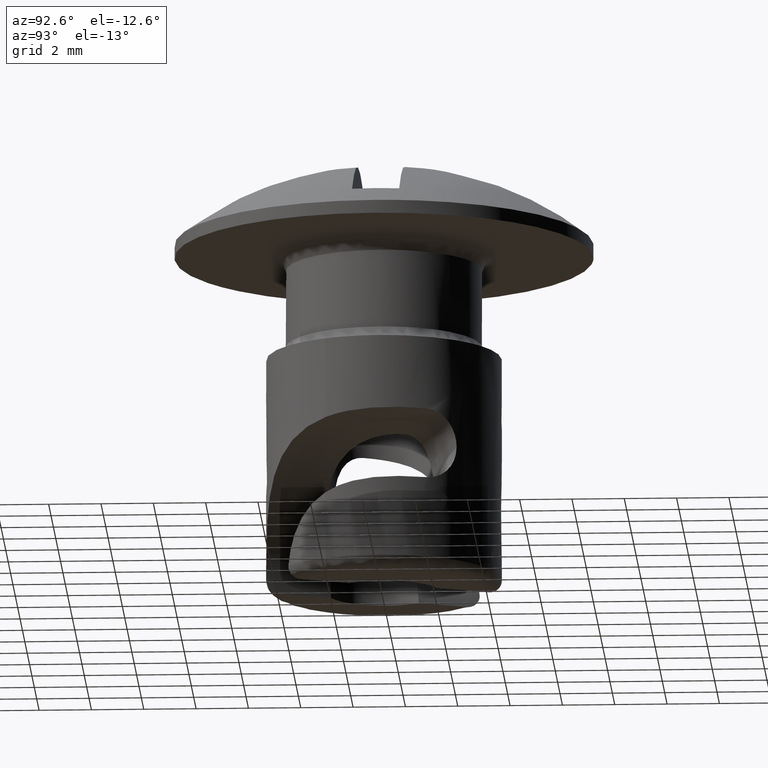
[diagram: clean part render]
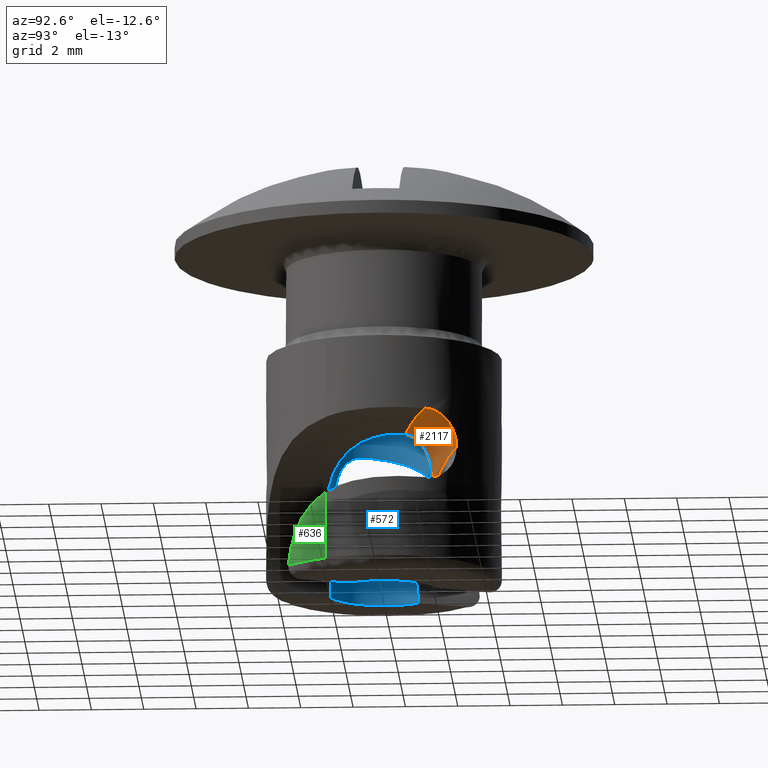
[diagram: same view with three faces highlighted in distinct colors, each labeled with its STEP entity id]
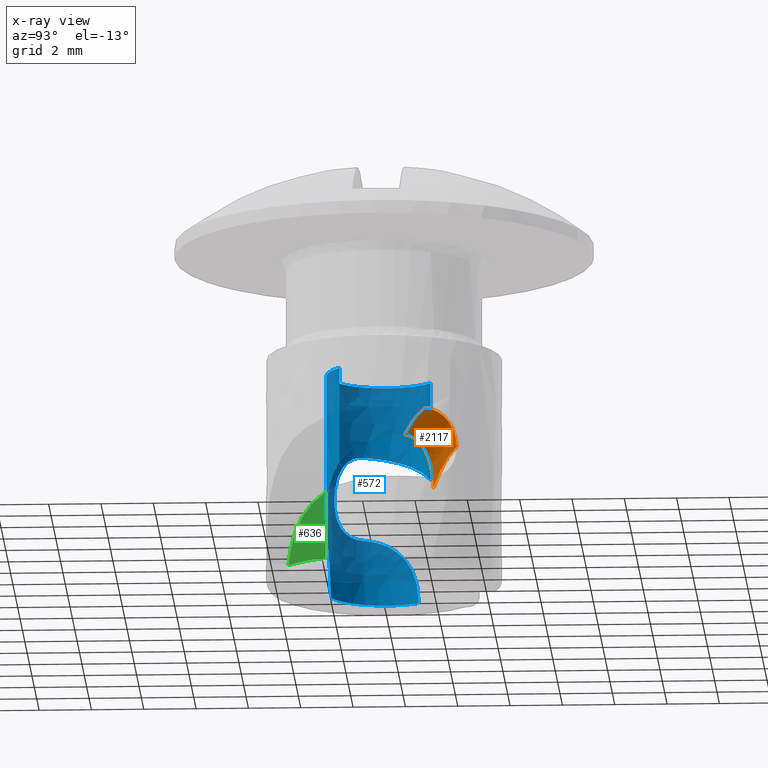
[diagram: x-ray of the same camera — body ghosted, the three highlighted faces saturated]
A machine part, auxiliary view with three faces highlighted in distinct colors.
The next image is the same camera in x-ray (body ghosted, the three faces saturated) — at least one of them is partly hidden behind the body in this view.
Their STEP definitions:

[orange] entity #2117 — the highlighted face is a freeform B-spline surface patch.
#175=CARTESIAN_POINT('',(1.032118753242044,1.942866665318565,-9.234441002166861));
#176=VERTEX_POINT('',#175);
#207=CARTESIAN_POINT('',(2.012875800871520,0.887880065248595,-7.353733664145491));
#208=VERTEX_POINT('',#207);
#209=CARTESIAN_POINT('',(1.032118753242044,1.942866665318565,-9.234441002166861));
#210=CARTESIAN_POINT('',(1.032118753242034,1.942866665318565,-9.124854469212359));
#211=CARTESIAN_POINT('',(1.041282203844358,1.938060405158311,-9.017136617474094));
#212=CARTESIAN_POINT('',(1.073939464759542,1.920156448864870,-8.804692381530945));
#213=CARTESIAN_POINT('',(1.097469224113807,1.907029235791350,-8.699974278932073));
#214=CARTESIAN_POINT('',(1.142077236475881,1.880414684832481,-8.544978165673790));
#215=CARTESIAN_POINT('',(1.158486466521929,1.870386004651250,-8.493791863974659));
#216=CARTESIAN_POINT('',(1.193726584059462,1.848094029539476,-8.393576387638401));
#217=CARTESIAN_POINT('',(1.212608139912845,1.835801363041411,-8.344366554851861));
#218=CARTESIAN_POINT('',(1.272716932055015,1.795141273819650,-8.199396856227910));
#219=CARTESIAN_POINT('',(1.317377743613420,1.763063380872777,-8.106261604249301));
#220=CARTESIAN_POINT('',(1.390581283146176,1.705066815714060,-7.972278008562050));
#221=CARTESIAN_POINT('',(1.416083724428877,1.684012830470474,-7.928507851817817));
#222=CARTESIAN_POINT('',(1.468236022169010,1.638741990365432,-7.844494840142361));
#223=CARTESIAN_POINT('',(1.494976529229624,1.614458951879093,-7.804073234899604));
#224=CARTESIAN_POINT('',(1.549625672266151,1.562079641408745,-7.726638449929887));
#225=CARTESIAN_POINT('',(1.577534351320437,1.533986897261925,-7.689622906671736));
#226=CARTESIAN_POINT('',(1.634396425313391,1.473254477505524,-7.619411359977892));
#227=CARTESIAN_POINT('',(1.663501912573233,1.440417627060678,-7.586075583230833));
#228=CARTESIAN_POINT('',(1.721240732300116,1.370901854602611,-7.525319564401475));
#229=CARTESIAN_POINT('',(1.749995762120609,1.334113536934531,-7.497721700447082));
#230=CARTESIAN_POINT('',(1.792743914190121,1.275403968299766,-7.460953198622168));
#231=CARTESIAN_POINT('',(1.806929158389989,1.255244469140706,-7.449470899381894));
#232=CARTESIAN_POINT('',(1.835133734807759,1.213637440143806,-7.428168809252604));
#233=CARTESIAN_POINT('',(1.849219083294550,1.192082050468152,-7.418309368843893));
#234=CARTESIAN_POINT('',(1.918099501087977,1.082417494791819,-7.374174865334665));
#235=CARTESIAN_POINT('',(1.968415222094476,0.988674785859860,-7.354867188049877));
#236=CARTESIAN_POINT('',(2.012875800871515,0.887880065248595,-7.353733664145491));
#237=B_SPLINE_CURVE_WITH_KNOTS('',3,(#209,#210,#211,#212,#213,#214,#215,#216,#217,#218,#219,#220,#221,#222,#223,#224,#225,#226,#227,#228,#229,#230,#231,#232,#233,#234,#235,#236),.UNSPECIFIED.,.F.,.U.,(4,2,2,2,2,2,2,2,2,2,2,2,2,4),(0.0,0.125000000000003,0.250000000000007,0.312500000000007,0.375000000000008,0.500000000000008,0.562500000000007,0.625000000000006,0.687500000000005,0.750000000000004,0.812500000000003,0.843750000000002,0.875000000000002,1.0),.UNSPECIFIED.);
#238=EDGE_CURVE('',#176,#208,#237,.T.);
#1051=CARTESIAN_POINT('',(4.138067084196240,1.768163116539770,-6.800013149771270));
#1052=VERTEX_POINT('',#1051);
#1080=CARTESIAN_POINT('',(3.415381198139435,2.930046291681350,-8.170462200892130));
#1081=VERTEX_POINT('',#1080);
#1082=CARTESIAN_POINT('',(4.138067084196240,1.768163116539770,-6.800013149771270));
#1083=CARTESIAN_POINT('',(4.102541713172384,1.851303844401668,-6.800060726709596));
#1084=CARTESIAN_POINT('',(4.065165760879489,1.931852949697245,-6.809233237699533));
#1085=CARTESIAN_POINT('',(4.006647248863185,2.049069287224636,-6.836010289384632));
#1086=CARTESIAN_POINT('',(3.986732312869700,2.087537167938670,-6.847122783823728));
#1087=CARTESIAN_POINT('',(3.946146796107014,2.163277935351615,-6.873810659168159));
#1088=CARTESIAN_POINT('',(3.925515551303553,2.200460772988971,-6.889387940334792));
#1089=CARTESIAN_POINT('',(3.864047971951117,2.307798322734312,-6.941709687551087));
#1090=CARTESIAN_POINT('',(3.823165163859460,2.374644334663887,-6.984269859036838));
#1091=CARTESIAN_POINT('',(3.762766440123775,2.468394339171397,-7.059503605531202));
#1092=CARTESIAN_POINT('',(3.742700634400656,2.498678001110207,-7.086641080301975));
#1093=CARTESIAN_POINT('',(3.703793107336876,2.555996167841224,-7.143759301832453));
#1094=CARTESIAN_POINT('',(3.684885201104129,2.583140956090979,-7.173801872152760));
#1095=CARTESIAN_POINT('',(3.629991790121331,2.660290243761957,-7.268286436362699));
#1096=CARTESIAN_POINT('',(3.595745260727948,2.706138452807791,-7.337201084492217));
#1097=CARTESIAN_POINT('',(3.533876387058074,2.786447018481747,-7.486491024522552));
#1098=CARTESIAN_POINT('',(3.507103599031713,2.819831620189124,-7.564786027632745));
#1099=CARTESIAN_POINT('',(3.473875371948746,2.860506319746183,-7.687631841679592));
#1100=CARTESIAN_POINT('',(3.463960285180555,2.872483544934629,-7.729487731523726));
#1101=CARTESIAN_POINT('',(3.446647801500773,2.893233745420214,-7.815086096206165));
#1102=CARTESIAN_POINT('',(3.439245722064781,2.902011828181658,-7.858964221553952));
#1103=CARTESIAN_POINT('',(3.421493946064818,2.922963278529155,-7.990919675742077));
#1104=CARTESIAN_POINT('',(3.415381198139474,2.930046291681306,-8.080072810121010));
#1105=CARTESIAN_POINT('',(3.415381198139435,2.930046291681350,-8.170462200892130));
#1106=B_SPLINE_CURVE_WITH_KNOTS('',3,(#1082,#1083,#1084,#1085,#1086,#1087,#1088,#1089,#1090,#1091,#1092,#1093,#1094,#1095,#1096,#1097,#1098,#1099,#1100,#1101,#1102,#1103,#1104,#1105),.UNSPECIFIED.,.F.,.U.,(4,2,2,2,2,2,2,2,2,2,2,4),(0.0,0.125000000000000,0.187500000000000,0.250000000000000,0.374999999999999,0.437499999999999,0.499999999999998,0.624999999999998,0.749999999999998,0.812499999999998,0.874999999999999,1.0),.UNSPECIFIED.);
#1107=EDGE_CURVE('',#1052,#1081,#1106,.T.);
#2062=CARTESIAN_POINT('',(3.415381198139435,2.930046291681350,-8.170462200892130));
#2063=CARTESIAN_POINT('',(3.252948799626849,2.862764589317359,-8.189071008770352));
#2064=CARTESIAN_POINT('',(2.889550121709481,2.712239928529257,-8.252160785596566));
#2065=CARTESIAN_POINT('',(2.299481921131658,2.467825677374446,-8.435507955953911));
#2066=CARTESIAN_POINT('',(1.653120831397229,2.200094148089612,-8.753765077929057));
#2067=CARTESIAN_POINT('',(1.233703369024918,2.026365747056334,-9.059075014553640));
#2068=CARTESIAN_POINT('',(1.032118753242044,1.942866665318565,-9.234441002166861));
#2069=B_SPLINE_CURVE_WITH_KNOTS('',3,(#2062,#2063,#2064,#2065,#2066,#2067,#2068),.UNSPECIFIED.,.F.,.U.,(4,1,1,1,4),(1.380049E-009,0.530393634346777,1.193388651622283,1.988978422557254,2.828770155523210),.UNSPECIFIED.);
#2070=EDGE_CURVE('',#1081,#176,#2069,.T.);
#2086=CARTESIAN_POINT('',(0.667218119776613,0.228880620046606,-8.308594360100162));
#2087=CARTESIAN_POINT('',(2.258988903186782,0.888213666050986,-6.834379445820966));
#2088=CARTESIAN_POINT('',(4.353644598496215,1.755848462664108,-6.797079529350408));
#2089=CARTESIAN_POINT('',(0.009777495602256,1.632699212973334,-8.226577289655017));
#2090=CARTESIAN_POINT('',(1.628835571472919,2.303335025583750,-6.727090311122086));
#2091=CARTESIAN_POINT('',(3.759399378149682,3.185843448909231,-6.689150972355243));
#2092=CARTESIAN_POINT('',(0.981219799672248,1.918246490167738,-9.403192867639604));
#2093=CARTESIAN_POINT('',(2.208814815282642,2.426732994215870,-8.266258517814112));
#2094=CARTESIAN_POINT('',(3.824241431841661,3.095864607129732,-8.237492321060680));
#2102=(BOUNDED_SURFACE()B_SPLINE_SURFACE(2,2,((#2086,#2089,#2092),(#2087,#2090,#2093),(#2088,#2091,#2094)),.UNSPECIFIED.,.F.,.F.,.U.)B_SPLINE_SURFACE_WITH_KNOTS((3,3),(3,3),(0.0,4.396885313458870),(0.0,2.460205479236310),.UNSPECIFIED.)GEOMETRIC_REPRESENTATION_ITEM()RATIONAL_B_SPLINE_SURFACE(((0.864860594971331,0.567543016253314,0.864860703889988),(0.813143560919071,0.533605013217498,0.813143663324597),(0.863663930251262,0.566757735124054,0.863664039019214)))REPRESENTATION_ITEM('')SURFACE());
#2103=ORIENTED_EDGE('',*,*,#1107,.F.);
#2104=CARTESIAN_POINT('',(2.012875800871520,0.887880065248595,-7.353733664145491));
#2105=CARTESIAN_POINT('',(2.252840441712936,0.987276673873548,-7.236129956004461));
#2106=CARTESIAN_POINT('',(2.693783305072265,1.169921187922031,-7.058008548052570));
#2107=CARTESIAN_POINT('',(3.407417227970883,1.465518037054274,-6.872070201933330));
#2108=CARTESIAN_POINT('',(3.874945099028540,1.659174421836042,-6.813489980304635));
#2109=CARTESIAN_POINT('',(4.138067084196240,1.768163116539770,-6.800013149771270));
#2110=B_SPLINE_CURVE_WITH_KNOTS('',3,(#2104,#2105,#2106,#2107,#2108,#2109),.UNSPECIFIED.,.F.,.U.,(4,1,1,4),(5.694614E-010,0.855359458991759,1.524770881539675,2.380130339962011),.UNSPECIFIED.);
#2111=EDGE_CURVE('',#208,#1052,#2110,.T.);
#2112=ORIENTED_EDGE('',*,*,#2111,.F.);
#2113=ORIENTED_EDGE('',*,*,#238,.F.);
#2114=ORIENTED_EDGE('',*,*,#2070,.F.);
#2115=EDGE_LOOP('',(#2103,#2112,#2113,#2114));
#2116=FACE_OUTER_BOUND('',#2115,.T.);
#2117=ADVANCED_FACE('',(#2116),#2102,.F.);

[blue] entity #572 — the highlighted face is a freeform B-spline surface patch.
#64=CARTESIAN_POINT('',(-1.375757423654364,1.716767833466327,-4.599999999996236));
#65=VERTEX_POINT('',#64);
#75=CARTESIAN_POINT('',(-1.375759241838896,1.716770116729899,-8.382687319869266));
#76=VERTEX_POINT('',#75);
#77=CARTESIAN_POINT('',(-1.375757423654364,1.716767833466327,-4.599999999996236));
#78=CARTESIAN_POINT('',(-1.375759241838896,1.716770116729899,-8.382687319869266));
#79=QUASI_UNIFORM_CURVE('',1,(#77,#78),.UNSPECIFIED.,.F.,.U.);
#80=EDGE_CURVE('',#65,#76,#79,.T.);
#240=CARTESIAN_POINT('',(1.471700788990504,-1.635285459659126,-8.278926757291551));
#241=VERTEX_POINT('',#240);
#275=CARTESIAN_POINT('',(1.471691453792637,-1.635275069509002,-4.599999999978133));
#276=VERTEX_POINT('',#275);
#277=CARTESIAN_POINT('',(1.471691453792637,-1.635275069509002,-4.599999999978133));
#278=CARTESIAN_POINT('',(1.471700788990504,-1.635285459659126,-8.278926757291551));
#279=QUASI_UNIFORM_CURVE('',1,(#277,#278),.UNSPECIFIED.,.F.,.U.);
#280=EDGE_CURVE('',#276,#241,#279,.T.);
#314=CARTESIAN_POINT('',(1.471691402111409,-1.635275027923851,-4.387500000000163));
#315=CARTESIAN_POINT('',(-0.163583625812442,-3.106966430035260,-4.387500000000162));
#316=CARTESIAN_POINT('',(-1.635275027923851,-1.471691402111409,-4.387500000000163));
#317=CARTESIAN_POINT('',(-3.106966430035260,0.163583625812442,-4.387500000000162));
#318=CARTESIAN_POINT('',(-1.471691402111409,1.635275027923851,-4.387500000000163));
#319=CARTESIAN_POINT('',(-1.424890533373898,1.677394203570889,-4.387500000000164));
#320=CARTESIAN_POINT('',(-1.375757376836618,1.716767788630607,-4.387500000000163));
#321=CARTESIAN_POINT('',(1.471691402111409,-1.635275027923851,-13.317812500000000));
#322=CARTESIAN_POINT('',(-0.163583625812442,-3.106966430035260,-13.317812499999997));
#323=CARTESIAN_POINT('',(-1.635275027923851,-1.471691402111409,-13.317812500000000));
#324=CARTESIAN_POINT('',(-3.106966430035260,0.163583625812442,-13.317812499999997));
#325=CARTESIAN_POINT('',(-1.471691402111409,1.635275027923851,-13.317812500000000));
#326=CARTESIAN_POINT('',(-1.424890533373898,1.677394203570889,-13.317812500000002));
#327=CARTESIAN_POINT('',(-1.375757376836618,1.716767788630607,-13.317812500000000));
#335=(BOUNDED_SURFACE()B_SPLINE_SURFACE(2,1,((#314,#321),(#315,#322),(#316,#323),(#317,#324),(#318,#325),(#319,#326),(#320,#327)),.UNSPECIFIED.,.F.,.F.,.U.)B_SPLINE_SURFACE_WITH_KNOTS((3,2,2,3),(2,2),(0.0,3.645079348883235,7.290158697766469,7.435961871721799),(0.0,8.930312499999836),.UNSPECIFIED.)GEOMETRIC_REPRESENTATION_ITEM()RATIONAL_B_SPLINE_SURFACE(((1.0,1.0),(0.707106781186548,0.707106781186548),(1.0,1.0),(0.707106781186548,0.707106781186548),(1.0,1.0),(0.988284271247462,0.988284271247462),(0.977505800795127,0.977505800795127)))REPRESENTATION_ITEM('')SURFACE());
#336=CARTESIAN_POINT('',(-2.200000000000000,0.0,-4.600000000000160));
#337=VERTEX_POINT('',#336);
#338=CARTESIAN_POINT('',(-1.375757423654364,1.716767833466327,-4.599999999996236));
#339=CARTESIAN_POINT('',(-1.507855755463639,1.610949143404856,-4.599999999996475));
#340=CARTESIAN_POINT('',(-1.736539282106621,1.379631334206660,-4.599999999997012));
#341=CARTESIAN_POINT('',(-1.958263561299848,1.025602062022350,-4.599999999997770));
#342=CARTESIAN_POINT('',(-2.089673533708440,0.707345459637778,-4.599999999998637));
#343=CARTESIAN_POINT('',(-2.176309359683836,0.384660616493224,-4.599999999999234));
#344=CARTESIAN_POINT('',(-2.200017936798573,0.143610098267863,-4.599999999999796));
#345=CARTESIAN_POINT('',(-2.200000000000000,0.0,-4.600000000000160));
#346=B_SPLINE_CURVE_WITH_KNOTS('',3,(#338,#339,#340,#341,#342,#343,#344,#345),.UNSPECIFIED.,.F.,.U.,(4,1,1,1,1,4),(5.085981E-009,0.507760798751281,0.969366128867934,1.246319756779184,1.538669427138460,1.969496190550174),.UNSPECIFIED.);
#347=EDGE_CURVE('',#65,#337,#346,.T.);
#348=ORIENTED_EDGE('',*,*,#347,.T.);
#349=CARTESIAN_POINT('',(0.000000263387106,-2.199999999999985,-4.600000000000159));
#350=VERTEX_POINT('',#349);
#351=CARTESIAN_POINT('',(-2.200000000000000,0.0,-4.600000000000160));
#352=CARTESIAN_POINT('',(-2.200017946196578,-0.143990721048483,-4.600000000000158));
#353=CARTESIAN_POINT('',(-2.176943293345365,-0.377965351090994,-4.600000000000163));
#354=CARTESIAN_POINT('',(-2.091914274289329,-0.700552046844059,-4.600000000000163));
#355=CARTESIAN_POINT('',(-1.986498088802503,-0.959537542967757,-4.600000000000139));
#356=CARTESIAN_POINT('',(-1.839841491350421,-1.218424055830034,-4.600000000000186));
#357=CARTESIAN_POINT('',(-1.670457354601622,-1.441046575553481,-4.600000000000154));
#358=CARTESIAN_POINT('',(-1.461437175372619,-1.652647604852471,-4.600000000000143));
#359=CARTESIAN_POINT('',(-1.226684319217016,-1.835857798539721,-4.600000000000168));
#360=CARTESIAN_POINT('',(-0.975432831272000,-1.978182645943113,-4.600000000000168));
#361=CARTESIAN_POINT('',(-0.692403970762545,-2.095424862221505,-4.600000000000101));
#362=CARTESIAN_POINT('',(-0.377968481366361,-2.178298790747462,-4.600000000000300));
#363=CARTESIAN_POINT('',(-0.125989496452101,-2.200008607681424,-4.600000000000120));
#364=CARTESIAN_POINT('',(0.000000263387106,-2.199999999999985,-4.600000000000159));
#365=B_SPLINE_CURVE_WITH_KNOTS('',3,(#351,#352,#353,#354,#355,#356,#357,#358,#359,#360,#361,#362,#363,#364),.UNSPECIFIED.,.F.,.U.,(4,1,1,1,1,1,1,1,1,1,1,4),(4.043438E-009,0.431970049979837,0.701952473924576,0.998934862682950,1.268921177724209,1.592898523707042,1.835876849190406,2.159854226021956,2.483836436404388,2.699824191739918,3.077803618021456,3.455773750775553),.UNSPECIFIED.);
#366=EDGE_CURVE('',#337,#350,#365,.T.);
#367=ORIENTED_EDGE('',*,*,#366,.T.);
#368=CARTESIAN_POINT('',(0.000000263387106,-2.199999999999985,-4.600000000000159));
#369=CARTESIAN_POINT('',(0.142744301272294,-2.200017803735274,-4.599999999998031));
#370=CARTESIAN_POINT('',(0.369445567569603,-2.177852011046339,-4.599999999994613));
#371=CARTESIAN_POINT('',(0.735976158888612,-2.083536301040919,-4.599999999989157));
#372=CARTESIAN_POINT('',(1.099484424535697,-1.924590718339572,-4.599999999983690));
#373=CARTESIAN_POINT('',(1.353121930644992,-1.742015696640205,-4.599999999979922));
#374=CARTESIAN_POINT('',(1.471691453792637,-1.635275069509002,-4.599999999978133));
#375=B_SPLINE_CURVE_WITH_KNOTS('',3,(#368,#369,#370,#371,#372,#373,#374),.UNSPECIFIED.,.F.,.U.,(4,1,1,1,4),(2.989339E-009,0.428230112090588,0.680132838915036,1.133549313273002,1.612160085232495),.UNSPECIFIED.);
#376=EDGE_CURVE('',#350,#276,#375,.T.);
#377=ORIENTED_EDGE('',*,*,#376,.T.);
#378=ORIENTED_EDGE('',*,*,#280,.T.);
#379=CARTESIAN_POINT('',(-0.772819371805389,-2.059793732042685,-13.100000000000000));
#380=VERTEX_POINT('',#379);
#381=CARTESIAN_POINT('',(-0.772819371805389,-2.059793732042685,-13.100000000000000));
#382=CARTESIAN_POINT('',(-0.773075505397063,-2.059697423639558,-12.921352947093350));
#383=CARTESIAN_POINT('',(-0.763578330655056,-2.063331586259700,-12.744455376049430));
#384=CARTESIAN_POINT('',(-0.726374994902369,-2.076720145993556,-12.393884926041590));
#385=CARTESIAN_POINT('',(-0.698679166027948,-2.086450178496178,-12.220209190242020));
#386=CARTESIAN_POINT('',(-0.626519930513565,-2.109240945028564,-11.875713825805610));
#387=CARTESIAN_POINT('',(-0.582064766943402,-2.122283022144757,-11.704891956374500));
#388=CARTESIAN_POINT('',(-0.503760624189160,-2.141713783230248,-11.450518688988870));
#389=CARTESIAN_POINT('',(-0.475762429383642,-2.148150909104993,-11.366201162164700));
#390=CARTESIAN_POINT('',(-0.416568896260026,-2.160409896654603,-11.199526399267301));
#391=CARTESIAN_POINT('',(-0.385323989356560,-2.166244420746488,-11.117004680081710));
#392=CARTESIAN_POINT('',(-0.221389719056923,-2.192856837554923,-10.708202007850300));
#393=CARTESIAN_POINT('',(-0.065845619766089,-2.206029976062915,-10.393203208101561));
#394=CARTESIAN_POINT('',(0.197615124121949,-2.192863372551908,-9.935399302547809));
#395=CARTESIAN_POINT('',(0.290515027980193,-2.182983875816730,-9.785274601932812));
#396=CARTESIAN_POINT('',(0.437052185071692,-2.156713035662068,-9.563561747283263));
#397=CARTESIAN_POINT('',(0.487135580074481,-2.146017352560327,-9.490198603189699));
#398=CARTESIAN_POINT('',(0.588460066530071,-2.120472475218049,-9.346227076551521));
#399=CARTESIAN_POINT('',(0.639831194594700,-2.105604653153068,-9.275417161712831));
#400=CARTESIAN_POINT('',(0.795742999457915,-2.053956143172461,-9.066491535652409));
#401=CARTESIAN_POINT('',(0.902099264614668,-2.010194728986965,-8.931873748106813));
#402=CARTESIAN_POINT('',(1.063755421558853,-1.926668090550899,-8.736965720342361));
#403=CARTESIAN_POINT('',(1.118172915861985,-1.895714352265223,-8.672959913737184));
#404=CARTESIAN_POINT('',(1.226512966952973,-1.827486550084315,-8.548313195552536));
#405=CARTESIAN_POINT('',(1.280204104351142,-1.790377983246794,-8.487927379754897));
#406=CARTESIAN_POINT('',(1.379972122486131,-1.714373944384880,-8.377790151345302));
#407=CARTESIAN_POINT('',(1.426221462569799,-1.676209434791187,-8.327616900418530));
#408=CARTESIAN_POINT('',(1.471700788990504,-1.635285459659126,-8.278926757291551));
#409=B_SPLINE_CURVE_WITH_KNOTS('',3,(#381,#382,#383,#384,#385,#386,#387,#388,#389,#390,#391,#392,#393,#394,#395,#396,#397,#398,#399,#400,#401,#402,#403,#404,#405,#406,#407,#408),.UNSPECIFIED.,.F.,.U.,(4,2,2,2,2,2,2,2,2,2,2,2,2,4),(0.0,0.062499999999999,0.124999999999997,0.187499999999996,0.218749999999995,0.249999999999994,0.374999999999993,0.437499999999993,0.468749999999993,0.499999999999993,0.562499999999992,0.593749999999992,0.624999999999993,0.652609904326957),.UNSPECIFIED.);
#410=EDGE_CURVE('',#380,#241,#409,.T.);
#411=ORIENTED_EDGE('',*,*,#410,.F.);
#412=CARTESIAN_POINT('',(-1.812775825419190,1.246532713881128,-13.100000000000000));
#413=VERTEX_POINT('',#412);
#414=CARTESIAN_POINT('',(-1.812775825419190,1.246532713881128,-13.100000000000000));
#415=CARTESIAN_POINT('',(-1.895241939213521,1.126639749928085,-13.099999999999980));
#416=CARTESIAN_POINT('',(-2.021130188997194,0.897857041067541,-13.100000000000060));
#417=CARTESIAN_POINT('',(-2.153031098545939,0.507733359452101,-13.099999999999980));
#418=CARTESIAN_POINT('',(-2.206726124846284,0.140699706530441,-13.100000000000010));
#419=CARTESIAN_POINT('',(-2.195058406583911,-0.270736630250318,-13.100000000000090));
#420=CARTESIAN_POINT('',(-2.117209547651026,-0.644234248138233,-13.099999999999850));
#421=CARTESIAN_POINT('',(-1.979292121116258,-0.976541478940556,-13.100000000000170));
#422=CARTESIAN_POINT('',(-1.826265381597396,-1.236801723739726,-13.099999999999790));
#423=CARTESIAN_POINT('',(-1.626240406055861,-1.496953916835808,-13.100000000000071));
#424=CARTESIAN_POINT('',(-1.289564460321188,-1.809809255335122,-13.099999999999721));
#425=CARTESIAN_POINT('',(-0.972362159529707,-1.985029556849606,-13.100000000000280));
#426=CARTESIAN_POINT('',(-0.772819371805389,-2.059793732042685,-13.100000000000000));
#427=B_SPLINE_CURVE_WITH_KNOTS('',3,(#414,#415,#416,#417,#418,#419,#420,#421,#422,#423,#424,#425,#426),.UNSPECIFIED.,.F.,.U.,(4,1,1,1,1,1,1,1,1,1,4),(0.000000019813017,0.436546828659324,0.779555046571923,1.231700424355353,1.543525834477717,2.011247153226838,2.369846917710257,2.619310106156408,2.915541994849428,3.352096408526768,3.991330957084215),.UNSPECIFIED.);
#428=EDGE_CURVE('',#413,#380,#427,.T.);
#429=ORIENTED_EDGE('',*,*,#428,.F.);
#430=CARTESIAN_POINT('',(-2.012873778885555,-0.887884649194355,-10.595919423287040));
#431=VERTEX_POINT('',#430);
#432=CARTESIAN_POINT('',(-1.812775825419190,1.246532713881128,-13.100000000000000));
#433=CARTESIAN_POINT('',(-1.812410618136820,1.247063818219887,-12.942188868994981));
#434=CARTESIAN_POINT('',(-1.819073827026198,1.237546713274810,-12.786684972134150));
#435=CARTESIAN_POINT('',(-1.845075822453526,1.198435090068070,-12.480151398929680));
#436=CARTESIAN_POINT('',(-1.864433727716226,1.168851650508296,-12.329121847610219));
#437=CARTESIAN_POINT('',(-1.895336825932628,1.117069278462619,-12.143371512430210));
#438=CARTESIAN_POINT('',(-1.901850310643425,1.105962810069798,-12.106374610925061));
#439=CARTESIAN_POINT('',(-1.915499908396519,1.082149916732845,-12.032698866104210));
#440=CARTESIAN_POINT('',(-1.922656327030751,1.069405907429057,-11.995923705162410));
#441=CARTESIAN_POINT('',(-1.944792569397026,1.028944725862509,-11.887017448803981));
#442=CARTESIAN_POINT('',(-1.960446097914548,0.999005405916990,-11.816237070999360));
#443=CARTESIAN_POINT('',(-2.009030383013121,0.899577531760961,-11.609497313952250));
#444=CARTESIAN_POINT('',(-2.043696608127041,0.820616287498672,-11.479091936329860));
#445=CARTESIAN_POINT('',(-2.093440665352595,0.678257259447985,-11.295903158434781));
#446=CARTESIAN_POINT('',(-2.109390444592164,0.627378402392566,-11.237739907891090));
#447=CARTESIAN_POINT('',(-2.138559219289013,0.519322802425759,-11.128197608805561));
#448=CARTESIAN_POINT('',(-2.151825966837920,0.462022211834042,-11.076653698480079));
#449=CARTESIAN_POINT('',(-2.168734072445431,0.370873835637882,-11.004238006264201));
#450=CARTESIAN_POINT('',(-2.173869877446803,0.339623487135150,-10.980917168890230));
#451=CARTESIAN_POINT('',(-2.182946113274255,0.275319130510840,-10.935936691300810));
#452=CARTESIAN_POINT('',(-2.186886308913642,0.242198231716464,-10.914248172571030));
#453=CARTESIAN_POINT('',(-2.196460623662856,0.141730642207780,-10.852721541041589));
#454=CARTESIAN_POINT('',(-2.199934900083337,0.072787678388567,-10.816038930971979));
#455=CARTESIAN_POINT('',(-2.200063290856230,-0.068797724938606,-10.750856409971210));
#456=CARTESIAN_POINT('',(-2.196723465206875,-0.141438510523540,-10.722352797745970));
#457=CARTESIAN_POINT('',(-2.185708695021827,-0.253134764934389,-10.685660736129330));
#458=CARTESIAN_POINT('',(-2.181004361142310,-0.291005371272161,-10.674398437046079));
#459=CARTESIAN_POINT('',(-2.169565460829459,-0.366674052268324,-10.654197192379730));
#460=CARTESIAN_POINT('',(-2.162850350299085,-0.404419618546142,-10.645258372277700));
#461=CARTESIAN_POINT('',(-2.139684087050876,-0.517358164366608,-10.621774213927910));
#462=CARTESIAN_POINT('',(-2.120221062363985,-0.592251863671866,-10.610537659287580));
#463=CARTESIAN_POINT('',(-2.084720334452699,-0.703893481251315,-10.600126897997839));
#464=CARTESIAN_POINT('',(-2.071833630027908,-0.740991177832645,-10.597736445006669));
#465=CARTESIAN_POINT('',(-2.043877303159095,-0.814940541249196,-10.595158810099401));
#466=CARTESIAN_POINT('',(-2.028787430191256,-0.851807697679718,-10.594984850439859));
#467=CARTESIAN_POINT('',(-2.012873778885555,-0.887884649194355,-10.595919423287040));
#468=B_SPLINE_CURVE_WITH_KNOTS('',3,(#432,#433,#434,#435,#436,#437,#438,#439,#440,#441,#442,#443,#444,#445,#446,#447,#448,#449,#450,#451,#452,#453,#454,#455,#456,#457,#458,#459,#460,#461,#462,#463,#464,#465,#466,#467),.UNSPECIFIED.,.F.,.U.,(4,2,2,2,2,2,2,2,2,2,2,2,2,2,2,2,2,4),(0.0,0.125000000000000,0.250000000000000,0.281249999999999,0.312499999999999,0.374999999999999,0.500000000000000,0.562500000000000,0.624999999999999,0.656249999999999,0.687499999999999,0.749999999999999,0.812499999999999,0.843749999999999,0.874999999999999,0.937500000000000,0.968750000000000,1.0),.UNSPECIFIED.);
#469=EDGE_CURVE('',#413,#431,#468,.T.);
#470=ORIENTED_EDGE('',*,*,#469,.T.);
#471=CARTESIAN_POINT('',(-1.032118753242044,-1.942866665318565,-9.234441002166861));
#472=VERTEX_POINT('',#471);
#473=CARTESIAN_POINT('',(-2.012873778885555,-0.887884649194355,-10.595919423287040));
#474=CARTESIAN_POINT('',(-1.974705105529072,-0.974414720238799,-10.598160983383130));
#475=CARTESIAN_POINT('',(-1.931581661244066,-1.057132635384132,-10.592508207788001));
#476=CARTESIAN_POINT('',(-1.860000466479039,-1.175811441265096,-10.572315500283731));
#477=CARTESIAN_POINT('',(-1.834987469732379,-1.214466607965226,-10.563609455431401));
#478=CARTESIAN_POINT('',(-1.782719143293844,-1.289969229117915,-10.541975890060280));
#479=CARTESIAN_POINT('',(-1.755655959503164,-1.326514784801721,-10.529109606807539));
#480=CARTESIAN_POINT('',(-1.673273506470649,-1.431095057039520,-10.484805019697060));
#481=CARTESIAN_POINT('',(-1.616257393472005,-1.494804584916043,-10.447558533748420));
#482=CARTESIAN_POINT('',(-1.529405260818558,-1.581961353965471,-10.378389259172639));
#483=CARTESIAN_POINT('',(-1.500235664234993,-1.609582054842754,-10.353049322070961));
#484=CARTESIAN_POINT('',(-1.443408324574550,-1.660732924965157,-10.298941842260350));
#485=CARTESIAN_POINT('',(-1.387702860758033,-1.708197452055896,-10.241114641490460));
#486=CARTESIAN_POINT('',(-1.335079089132819,-1.748872755976258,-10.175534925368821));
#487=CARTESIAN_POINT('',(-1.284464802402689,-1.786376853361107,-10.105827827797460));
#488=CARTESIAN_POINT('',(-1.260097454891801,-1.803578657779946,-10.068744248125810));
#489=CARTESIAN_POINT('',(-1.192554030486390,-1.849535392163842,-9.954095308350984));
#490=CARTESIAN_POINT('',(-1.154252969743302,-1.873230172668730,-9.872312174651665));
#491=CARTESIAN_POINT('',(-1.107909417923924,-1.900752356611758,-9.741864807244451));
#492=CARTESIAN_POINT('',(-1.094332034029161,-1.908562314582885,-9.697039163842366));
#493=CARTESIAN_POINT('',(-1.071452822242544,-1.921499820207348,-9.606899593735340));
#494=CARTESIAN_POINT('',(-1.062051394246149,-1.926686118844450,-9.561334041801752));
#495=CARTESIAN_POINT('',(-1.047099368154725,-1.934852831038591,-9.469288062563837));
#496=CARTESIAN_POINT('',(-1.041548835718660,-1.937832238821488,-9.422807522444819));
#497=CARTESIAN_POINT('',(-1.034116470538133,-1.941808664200607,-9.328986802705730));
#498=CARTESIAN_POINT('',(-1.032248123933261,-1.942797939080730,-9.281688668918351));
#499=CARTESIAN_POINT('',(-1.032118753242044,-1.942866665318565,-9.234441002166861));
#500=B_SPLINE_CURVE_WITH_KNOTS('',3,(#473,#474,#475,#476,#477,#478,#479,#480,#481,#482,#483,#484,#485,#486,#487,#488,#489,#490,#491,#492,#493,#494,#495,#496,#497,#498,#499),.UNSPECIFIED.,.F.,.U.,(4,2,2,2,2,2,1,2,2,2,2,2,2,4),(0.0,0.125000000000001,0.187500000000001,0.250000000000001,0.375000000000002,0.437500000000002,0.500000000000003,0.562500000000003,0.625000000000004,0.750000000000002,0.812500000000002,0.875000000000001,0.937500000000001,1.0),.UNSPECIFIED.);
#501=EDGE_CURVE('',#431,#472,#500,.T.);
#502=ORIENTED_EDGE('',*,*,#501,.T.);
#503=CARTESIAN_POINT('',(-2.012875800871520,-0.887880065248593,-7.353733664145491));
#504=VERTEX_POINT('',#503);
#505=CARTESIAN_POINT('',(-1.032118753242044,-1.942866665318565,-9.234441002166861));
#506=CARTESIAN_POINT('',(-1.032118753242034,-1.942866665318565,-9.124854469212359));
#507=CARTESIAN_POINT('',(-1.041282203844359,-1.938060405158312,-9.017136617474096));
#508=CARTESIAN_POINT('',(-1.073939464759543,-1.920156448864870,-8.804692381530945));
#509=CARTESIAN_POINT('',(-1.097469224113808,-1.907029235791350,-8.699974278932075));
#510=CARTESIAN_POINT('',(-1.142077236475882,-1.880414684832481,-8.544978165673784));
#511=CARTESIAN_POINT('',(-1.158486466521929,-1.870386004651250,-8.493791863974659));
#512=CARTESIAN_POINT('',(-1.193726584059462,-1.848094029539476,-8.393576387638403));
#513=CARTESIAN_POINT('',(-1.212608139912846,-1.835801363041410,-8.344366554851867));
#514=CARTESIAN_POINT('',(-1.272716932055015,-1.795141273819649,-8.199396856227907));
#515=CARTESIAN_POINT('',(-1.317377743613420,-1.763063380872775,-8.106261604249296));
#516=CARTESIAN_POINT('',(-1.390581283146177,-1.705066815714060,-7.972278008562048));
#517=CARTESIAN_POINT('',(-1.416083724428878,-1.684012830470474,-7.928507851817819));
#518=CARTESIAN_POINT('',(-1.468236022169011,-1.638741990365432,-7.844494840142362));
#519=CARTESIAN_POINT('',(-1.494976529229626,-1.614458951879093,-7.804073234899604));
#520=CARTESIAN_POINT('',(-1.549625672266153,-1.562079641408745,-7.726638449929889));
#521=CARTESIAN_POINT('',(-1.577534351320438,-1.533986897261925,-7.689622906671739));
#522=CARTESIAN_POINT('',(-1.634396425313391,-1.473254477505523,-7.619411359977895));
#523=CARTESIAN_POINT('',(-1.663501912573234,-1.440417627060677,-7.586075583230832));
#524=CARTESIAN_POINT('',(-1.721240732300117,-1.370901854602611,-7.525319564401476));
#525=CARTESIAN_POINT('',(-1.749995762120610,-1.334113536934530,-7.497721700447083));
#526=CARTESIAN_POINT('',(-1.792743914190122,-1.275403968299764,-7.460953198622167));
#527=CARTESIAN_POINT('',(-1.806929158389990,-1.255244469140705,-7.449470899381895));
#528=CARTESIAN_POINT('',(-1.835133734807760,-1.213637440143806,-7.428168809252602));
#529=CARTESIAN_POINT('',(-1.849219083294551,-1.192082050468150,-7.418309368843890));
#530=CARTESIAN_POINT('',(-1.918099501087977,-1.082417494791817,-7.374174865334664));
#531=CARTESIAN_POINT('',(-1.968415222094476,-0.988674785859860,-7.354867188049879));
#532=CARTESIAN_POINT('',(-2.012875800871515,-0.887880065248595,-7.353733664145491));
#533=B_SPLINE_CURVE_WITH_KNOTS('',3,(#505,#506,#507,#508,#509,#510,#511,#512,#513,#514,#515,#516,#517,#518,#519,#520,#521,#522,#523,#524,#525,#526,#527,#528,#529,#530,#531,#532),.UNSPECIFIED.,.F.,.U.,(4,2,2,2,2,2,2,2,2,2,2,2,2,4),(0.0,0.125000000000001,0.250000000000001,0.312500000000002,0.375000000000003,0.500000000000004,0.562500000000003,0.625000000000003,0.687500000000002,0.750000000000002,0.812500000000001,0.843750000000001,0.875000000000001,1.0),.UNSPECIFIED.);
#534=EDGE_CURVE('',#472,#504,#533,.T.);
#535=ORIENTED_EDGE('',*,*,#534,.T.);
#536=CARTESIAN_POINT('',(-1.375759241838896,1.716770116729899,-8.382687319869266));
#537=CARTESIAN_POINT('',(-1.466755935178286,1.643876774015130,-8.283241222091528));
#538=CARTESIAN_POINT('',(-1.555385087442770,1.561049536235959,-8.189506099226160));
#539=CARTESIAN_POINT('',(-1.664426771457696,1.439102709249386,-8.075992662768016));
#540=CARTESIAN_POINT('',(-1.688587216405408,1.410700086782487,-8.050959814139203));
#541=CARTESIAN_POINT('',(-1.735783539073267,1.352204669629359,-8.002187476029329));
#542=CARTESIAN_POINT('',(-1.758779314836458,1.322170734390679,-7.978488599929541));
#543=CARTESIAN_POINT('',(-1.825838857999161,1.229676383517549,-7.909393111138549));
#544=CARTESIAN_POINT('',(-1.867980383045912,1.164828073582940,-7.865995460107614));
#545=CARTESIAN_POINT('',(-1.946380672701880,1.028483539766896,-7.784258393609828));
#546=CARTESIAN_POINT('',(-1.982642919712431,0.956989726224578,-7.745918431834264));
#547=CARTESIAN_POINT('',(-2.031899806937512,0.844425164246774,-7.692053360871689));
#548=CARTESIAN_POINT('',(-2.047504601596868,0.805881720053267,-7.674654137090341));
#549=CARTESIAN_POINT('',(-2.076478472666465,0.727982199926560,-7.641484473401526));
#550=CARTESIAN_POINT('',(-2.089887510792289,0.688554737141216,-7.625672722793683));
#551=CARTESIAN_POINT('',(-2.151439400688370,0.489076033671738,-7.550260327680135));
#552=CARTESIAN_POINT('',(-2.183306249965282,0.322089420629500,-7.501457459201854));
#553=CARTESIAN_POINT('',(-2.197973418423917,0.104023404907045,-7.452766255410967));
#554=CARTESIAN_POINT('',(-2.199623021258823,0.059874388052475,-7.443646865526583));
#555=CARTESIAN_POINT('',(-2.200260188075090,-0.027961481169285,-7.426893265858941));
#556=CARTESIAN_POINT('',(-2.199264226694325,-0.071818972986469,-7.419218242407127));
#557=CARTESIAN_POINT('',(-2.192350843155101,-0.203195980633430,-7.398174694895167));
#558=CARTESIAN_POINT('',(-2.182521560695672,-0.290520062049635,-7.386775886986692));
#559=CARTESIAN_POINT('',(-2.159782006529402,-0.421060224001234,-7.373349228057887));
#560=CARTESIAN_POINT('',(-2.150866243997902,-0.464499289458303,-7.369488561011190));
#561=CARTESIAN_POINT('',(-2.130291684749745,-0.551219312560493,-7.362987837784583));
#562=CARTESIAN_POINT('',(-2.118578987299559,-0.594667564576222,-7.360341314076725));
#563=CARTESIAN_POINT('',(-2.079632561395051,-0.723295033365684,-7.354318147242182));
#564=CARTESIAN_POINT('',(-2.048676592775408,-0.806717542436443,-7.352820920707365));
#565=CARTESIAN_POINT('',(-2.012875800871520,-0.887880065248593,-7.353733664145491));
#566=B_SPLINE_CURVE_WITH_KNOTS('',3,(#536,#537,#538,#539,#540,#541,#542,#543,#544,#545,#546,#547,#548,#549,#550,#551,#552,#553,#554,#555,#556,#557,#558,#559,#560,#561,#562,#563,#564,#565),.UNSPECIFIED.,.F.,.U.,(4,2,2,2,2,2,2,2,2,2,2,2,2,2,4),(0.633404655239852,0.687499999999998,0.703124999999998,0.718749999999998,0.749999999999998,0.781249999999998,0.796874999999999,0.812499999999999,0.874999999999999,0.890624999999999,0.906249999999999,0.937499999999999,0.953125000000000,0.968750000000000,1.0),.UNSPECIFIED.);
#567=EDGE_CURVE('',#76,#504,#566,.T.);
#568=ORIENTED_EDGE('',*,*,#567,.F.);
#569=ORIENTED_EDGE('',*,*,#80,.F.);
#570=EDGE_LOOP('',(#348,#367,#377,#378,#411,#429,#470,#502,#535,#568,#569));
#571=FACE_OUTER_BOUND('',#570,.T.);
#572=ADVANCED_FACE('',(#571),#335,.F.);

[green] entity #636 — the highlighted face is a freeform B-spline surface patch.
#573=CARTESIAN_POINT('',(2.713106311191715,-3.590132886700946,-12.728910724636547));
#574=CARTESIAN_POINT('',(3.535229026579025,-2.968844929379387,-12.728910724636544));
#575=CARTESIAN_POINT('',(4.005059587124885,-2.051706047068884,-12.728910724636551));
#576=CARTESIAN_POINT('',(2.713106311191715,-3.590132886700946,-9.890302352852276));
#577=CARTESIAN_POINT('',(3.535229026579024,-2.968844929379387,-9.890302352852276));
#578=CARTESIAN_POINT('',(4.005059587124885,-2.051706047068884,-9.890302352852276));
#586=(BOUNDED_SURFACE()B_SPLINE_SURFACE(2,1,((#573,#576),(#574,#577),(#575,#578)),.UNSPECIFIED.,.F.,.F.,.U.)B_SPLINE_SURFACE_WITH_KNOTS((3,3),(2,2),(0.0,2.144013745473588),(0.0,2.838608371784272),.UNSPECIFIED.)GEOMETRIC_REPRESENTATION_ITEM()RATIONAL_B_SPLINE_SURFACE(((0.877981389226424,0.877981389226424),(0.913364740472849,0.913364740472849),(1.0,1.0)))REPRESENTATION_ITEM('')SURFACE());
#587=CARTESIAN_POINT('',(4.005058311718505,-2.051708158077638,-10.019212330594639));
#588=VERTEX_POINT('',#587);
#589=CARTESIAN_POINT('',(2.793620478200035,-3.527844189272170,-12.600000000000000));
#590=VERTEX_POINT('',#589);
#591=CARTESIAN_POINT('',(4.005058311718505,-2.051708158077638,-10.019212330594639));
#592=CARTESIAN_POINT('',(3.987496345656322,-2.085990408487856,-10.037218645996930));
#593=CARTESIAN_POINT('',(3.969595381235083,-2.119849799111525,-10.055897858013530));
#594=CARTESIAN_POINT('',(3.918416308548038,-2.213765736239002,-10.110355137346209));
#595=CARTESIAN_POINT('',(3.884332088519014,-2.272965359991181,-10.147853919623040));
#596=CARTESIAN_POINT('',(3.815590989861526,-2.386560701340901,-10.226503367192880));
#597=CARTESIAN_POINT('',(3.780805542497630,-2.441208405625092,-10.267784161893649));
#598=CARTESIAN_POINT('',(3.675788562727400,-2.598949181517104,-10.397669032401749));
#599=CARTESIAN_POINT('',(3.604896215922725,-2.695850490142060,-10.492304322472210));
#600=CARTESIAN_POINT('',(3.499502033620450,-2.829612155209177,-10.647172016917899));
#601=CARTESIAN_POINT('',(3.464527595181118,-2.872265058410245,-10.700949459909380));
#602=CARTESIAN_POINT('',(3.395277900055431,-2.953801928059313,-10.812996071954890));
#603=CARTESIAN_POINT('',(3.361121228573834,-2.992536533289379,-10.871101746544641));
#604=CARTESIAN_POINT('',(3.261911185468955,-3.101546075971295,-11.049297815364771));
#605=CARTESIAN_POINT('',(3.199576306238089,-3.165304379657766,-11.174115469904470));
#606=CARTESIAN_POINT('',(3.113381978328856,-3.249378495071027,-11.370258335494460));
#607=CARTESIAN_POINT('',(3.085867752658075,-3.275467950722235,-11.437128810739701));
#608=CARTESIAN_POINT('',(3.033544440536951,-3.323985326111783,-11.573875694073850));
#609=CARTESIAN_POINT('',(3.008652468202388,-3.346485640230481,-11.644016751632220));
#610=CARTESIAN_POINT('',(2.939166220722536,-3.408098152250739,-11.856817026456630));
#611=CARTESIAN_POINT('',(2.899770056602030,-3.441376051046074,-12.001571291875489));
#612=CARTESIAN_POINT('',(2.835530075221675,-3.494496456350443,-12.296614888678009));
#613=CARTESIAN_POINT('',(2.810681035727679,-3.514334257080745,-12.446903949715299));
#614=CARTESIAN_POINT('',(2.793620478200035,-3.527844189272170,-12.600000000000000));
#615=B_SPLINE_CURVE_WITH_KNOTS('',3,(#591,#592,#593,#594,#595,#596,#597,#598,#599,#600,#601,#602,#603,#604,#605,#606,#607,#608,#609,#610,#611,#612,#613,#614),.UNSPECIFIED.,.F.,.U.,(4,2,2,2,2,2,2,2,2,2,2,4),(0.545226895388163,0.562500000000000,0.593750000000000,0.625000000000000,0.687500000000000,0.718750000000000,0.750000000000000,0.812500000000000,0.843749999999999,0.874999999999999,0.937500000000000,1.0),.UNSPECIFIED.);
#616=EDGE_CURVE('',#588,#590,#615,.T.);
#617=ORIENTED_EDGE('',*,*,#616,.T.);
#618=CARTESIAN_POINT('',(4.005059589299957,-2.051706042823009,-12.600000000000000));
#619=VERTEX_POINT('',#618);
#620=CARTESIAN_POINT('',(2.793620478200035,-3.527844189272170,-12.600000000000000));
#621=CARTESIAN_POINT('',(2.982198950150653,-3.378536993579753,-12.600000000000010));
#622=CARTESIAN_POINT('',(3.247026679506814,-3.131808856870984,-12.600000000000000));
#623=CARTESIAN_POINT('',(3.660858210305771,-2.641082460270743,-12.600000000000010));
#624=CARTESIAN_POINT('',(3.877146725433020,-2.301477257997778,-12.600000000000000));
#625=CARTESIAN_POINT('',(4.005059589299957,-2.051706042823009,-12.600000000000000));
#626=B_SPLINE_CURVE_WITH_KNOTS('',3,(#620,#621,#622,#623,#624,#625),.UNSPECIFIED.,.F.,.U.,(4,1,1,4),(8.833647E-010,0.721585927495962,1.082378833447999,1.924229084116205),.UNSPECIFIED.);
#627=EDGE_CURVE('',#590,#619,#626,.T.);
#628=ORIENTED_EDGE('',*,*,#627,.T.);
#629=CARTESIAN_POINT('',(4.005059589299957,-2.051706042823009,-12.600000000000000));
#630=CARTESIAN_POINT('',(4.005058311718505,-2.051708158077638,-10.019212330594639));
#631=QUASI_UNIFORM_CURVE('',1,(#629,#630),.UNSPECIFIED.,.F.,.U.);
#632=EDGE_CURVE('',#619,#588,#631,.T.);
#633=ORIENTED_EDGE('',*,*,#632,.T.);
#634=EDGE_LOOP('',(#617,#628,#633));
#635=FACE_OUTER_BOUND('',#634,.T.);
#636=ADVANCED_FACE('',(#635),#586,.T.);